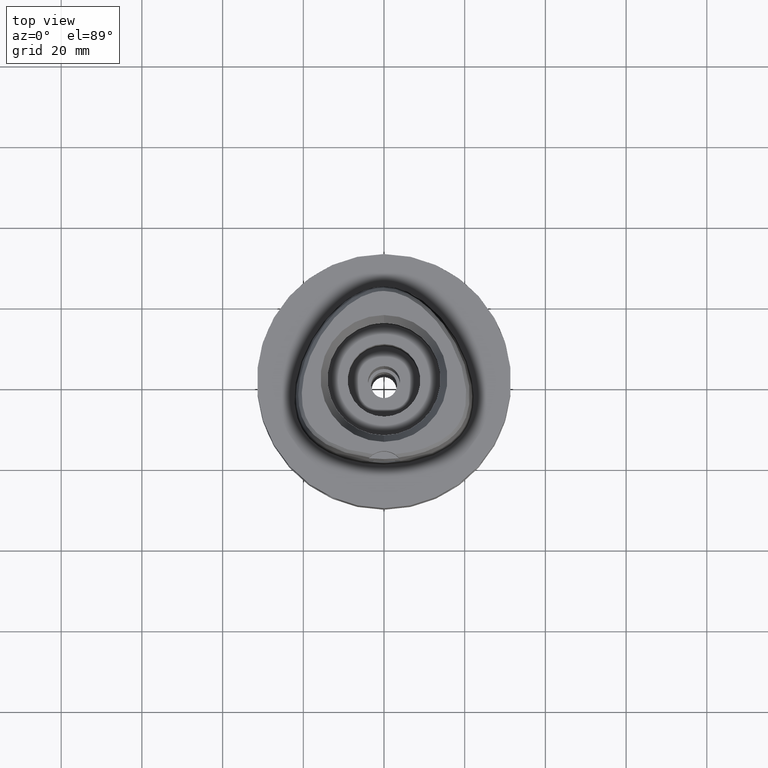
[diagram: clean part render]
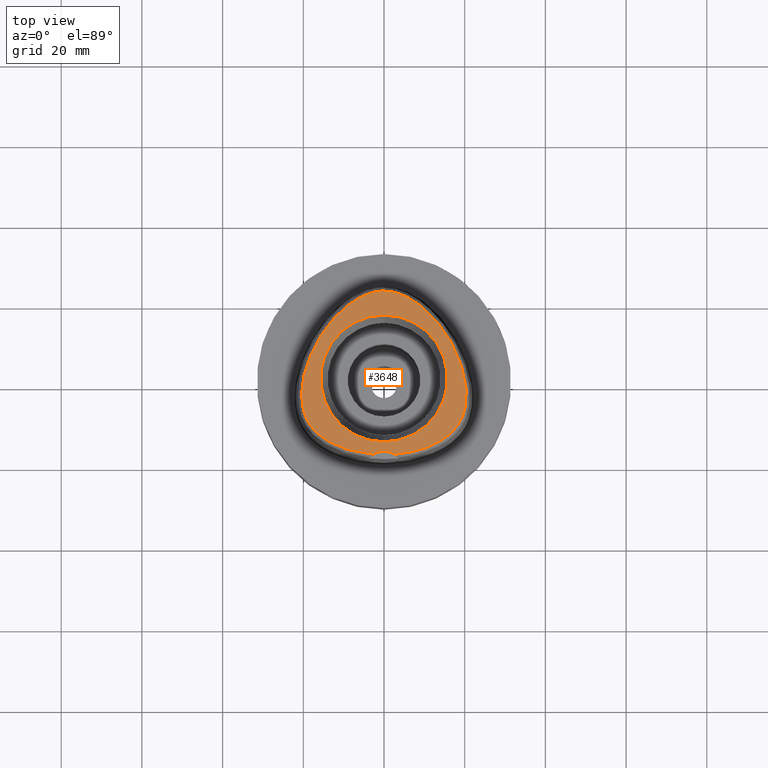
[diagram: same view with one face highlighted and labeled with its STEP entity id]
A machine part, top view. The second image highlights one B-rep face of the part: STEP entity #3648.
In plain terms, the highlighted planar face has unit normal (0, 0, 1).
Its self-contained STEP definition (entity closure, byte-faithful):
#47 = CARTESIAN_POINT ( 'NONE',  ( -19.98419490691658140, -7.809898894995987106, 37.99999999999893419 ) ) ;
#102 = CARTESIAN_POINT ( 'NONE',  ( -19.54919922641915520, -9.228169790567891440, 38.00000000000300560 ) ) ;
#123 = CARTESIAN_POINT ( 'NONE',  ( -12.44116897271302058, 14.89128547409752912, 38.00000000000346034 ) ) ;
#149 = CARTESIAN_POINT ( 'NONE',  ( -10.17136073855662204, -17.24644253469881505, 37.99999999999920419 ) ) ;
#240 = CIRCLE ( 'NONE', #4176, 5.000000000000000888 ) ;
#258 = CARTESIAN_POINT ( 'NONE',  ( 19.64387775268505365, 1.522048414457400245, 37.99999999999445777 ) ) ;
#277 = CARTESIAN_POINT ( 'NONE',  ( 0.0000000000000000000, -15.71487483155999776, 38.00000000000000000 ) ) ;
#307 = CARTESIAN_POINT ( 'NONE',  ( 16.88599964843205825, 8.518708218769862839, 38.00000000000117240 ) ) ;
#333 = CARTESIAN_POINT ( 'NONE',  ( 2.736932690727641670, 21.34527940057000350, 37.99999999999725020 ) ) ;
#355 = CARTESIAN_POINT ( 'NONE',  ( 11.46587147800092232, 15.92717600803098676, 37.99999999999713651 ) ) ;
#358 = CARTESIAN_POINT ( 'NONE',  ( 0.0000000000000000000, 0.0000000000000000000, 38.00000000000000000 ) ) ;
#365 = AXIS2_PLACEMENT_3D ( 'NONE', #3859, #3883, #873 ) ;
#381 = CARTESIAN_POINT ( 'NONE',  ( 18.31883910943385985, -11.58595831188205239, 37.99999999999312195 ) ) ;
#406 = CARTESIAN_POINT ( 'NONE',  ( 8.936919536467147651, -17.64796721714991179, 37.99999999999710809 ) ) ;
#418 = CARTESIAN_POINT ( 'NONE',  ( -7.655222869372381389, 19.09452359226542839, 37.99999999999960210 ) ) ;
#442 = CARTESIAN_POINT ( 'NONE',  ( -16.36032397153683959, -13.76458520345434167, 38.00000000000695621 ) ) ;
#459 = CARTESIAN_POINT ( 'NONE',  ( 10.17751632998298206, -17.24426134458252946, 37.99999999999647571 ) ) ;
#460 = ORIENTED_EDGE ( 'NONE', *, *, #777, .F. ) ;
#472 = CARTESIAN_POINT ( 'NONE',  ( -11.46564124494380366, 15.92741340513270920, 38.00000000000052580 ) ) ;
#484 = CARTESIAN_POINT ( 'NONE',  ( 2.682287482605000051, -18.78036330228999873, 38.00000000000000000 ) ) ;
#544 = DIRECTION ( 'NONE',  ( 0.0000000000000000000, 0.0000000000000000000, 1.000000000000000000 ) ) ;
#595 = CARTESIAN_POINT ( 'NONE',  ( -1.323674540694070645, 21.61098849315821724, 38.00000000000159162 ) ) ;
#659 = CARTESIAN_POINT ( 'NONE',  ( 20.40062138794495183, -4.309334958867448329, 37.99999999999764100 ) ) ;
#681 = CARTESIAN_POINT ( 'NONE',  ( 9.524842839487924095, 17.70516372194865440, 38.00000000000574829 ) ) ;
#706 = CARTESIAN_POINT ( 'NONE',  ( 0.6513209347955770667, 21.67370899611571033, 37.99999999999995026 ) ) ;
#732 = CARTESIAN_POINT ( 'NONE',  ( 7.655962789343341512, 19.09402979099525766, 38.00000000000524381 ) ) ;
#752 = CARTESIAN_POINT ( 'NONE',  ( 7.606839420237979432, -18.00827588386198741, 37.99999999999569411 ) ) ;
#777 = EDGE_CURVE ( 'NONE', #3486, #4056, #240, .T. ) ;
#781 = CARTESIAN_POINT ( 'NONE',  ( 6.196495988003596800, -18.31673538864655271, 38.00000000000195399 ) ) ;
#794 = CARTESIAN_POINT ( 'NONE',  ( -15.24692477332533258, 11.25717358966638493, 38.00000000000024158 ) ) ;
#795 = EDGE_CURVE ( 'NONE', #2599, #3895, #3064, .T. ) ;
#819 = CARTESIAN_POINT ( 'NONE',  ( -20.15090095364636369, -7.024227649787396999, 37.99999999999884182 ) ) ;
#833 = CARTESIAN_POINT ( 'NONE',  ( 17.45306278053647375, -12.68156296993412013, 37.99999999999918288 ) ) ;
#848 = CARTESIAN_POINT ( 'NONE',  ( -3.522896839653986589, -18.70811514173706058, 38.00000000000088107 ) ) ;
#873 = DIRECTION ( 'NONE',  ( 1.000000000000000000, 0.0000000000000000000, 0.0000000000000000000 ) ) ;
#879 = CARTESIAN_POINT ( 'NONE',  ( -16.09805956313724096, 9.908742513516916262, 38.00000000000546407 ) ) ;
#904 = CARTESIAN_POINT ( 'NONE',  ( 0.0000000000000000000, 0.0000000000000000000, 38.00000000000000000 ) ) ;
#906 = CARTESIAN_POINT ( 'NONE',  ( -17.45119705494190754, -12.68365517585671043, 38.00000000000304823 ) ) ;
#1040 = CARTESIAN_POINT ( 'NONE',  ( 18.79595068775678968, 4.257753965103133531, 37.99999999999955236 ) ) ;
#1064 = CARTESIAN_POINT ( 'NONE',  ( 20.36412151361125922, -5.276385427454160393, 38.00000000000110134 ) ) ;
#1142 = CARTESIAN_POINT ( 'NONE',  ( 18.24247239569447032, 5.672548708073054335, 37.99999999999752731 ) ) ;
#1191 = CARTESIAN_POINT ( 'NONE',  ( 15.72078707640256745, -14.29615620308996427, 37.99999999999882760 ) ) ;
#1194 = DIRECTION ( 'NONE',  ( 0.0000000000000000000, 0.0000000000000000000, 1.000000000000000000 ) ) ;
#1233 = CARTESIAN_POINT ( 'NONE',  ( -18.79649882724708476, 4.256255933891022636, 37.99999999999310063 ) ) ;
#1262 = CARTESIAN_POINT ( 'NONE',  ( -17.60426951086655478, 7.098774535281628495, 37.99999999999333511 ) ) ;
#1273 = CARTESIAN_POINT ( 'NONE',  ( 12.37622418509723232, -16.33871033285664609, 37.99999999999838707 ) ) ;
#1312 = CARTESIAN_POINT ( 'NONE',  ( -3.475593359606999682E-11, 21.68728795390000030, 38.00000000000000000 ) ) ;
#1315 = EDGE_CURVE ( 'NONE', #3895, #2599, #3543, .T. ) ;
#1357 = DIRECTION ( 'NONE',  ( 0.0000000000000000000, -1.000000000000000000, 0.0000000000000000000 ) ) ;
#1394 = EDGE_LOOP ( 'NONE', ( #4013, #1625 ) ) ;
#1443 = CARTESIAN_POINT ( 'NONE',  ( 14.34383722811372586, 12.54786717290478926, 37.99999999999550226 ) ) ;
#1492 = CARTESIAN_POINT ( 'NONE',  ( 5.894487344450305422, 20.13186406532421913, 37.99999999999623412 ) ) ;
#1519 = CARTESIAN_POINT ( 'NONE',  ( 6.760281394350983852, 19.65404668909887675, 37.99999999999285194 ) ) ;
#1578 = CARTESIAN_POINT ( 'NONE',  ( -5.058220461389586475, 20.53445508814830234, 37.99999999999654676 ) ) ;
#1625 = ORIENTED_EDGE ( 'NONE', *, *, #1315, .F. ) ;
#1633 = CARTESIAN_POINT ( 'NONE',  ( -2.841965291530688109, -18.76757795571831267, 37.99999999999987210 ) ) ;
#1644 = CARTESIAN_POINT ( 'NONE',  ( 18.99619228226526957, -10.46780014453504037, 37.99999999999318590 ) ) ;
#1651 = FACE_OUTER_BOUND ( 'NONE', #4080, .T. ) ;
#1658 = CARTESIAN_POINT ( 'NONE',  ( -2.682279906006999948, -18.78035848609999903, 38.00000000000000000 ) ) ;
#1688 = CARTESIAN_POINT ( 'NONE',  ( -11.31790883121279023, -16.80796958613593972, 37.99999999999668177 ) ) ;
#1868 = CARTESIAN_POINT ( 'NONE',  ( 3.482188079160158267, 21.13472718027730579, 37.99999999999627676 ) ) ;
#1889 = CARTESIAN_POINT ( 'NONE',  ( 13.40430406168371391, 13.76274261013174893, 38.00000000000000000 ) ) ;
#1911 = CARTESIAN_POINT ( 'NONE',  ( 11.32341394162557968, -16.80569392800742179, 37.99999999999619149 ) ) ;
#1941 = CARTESIAN_POINT ( 'NONE',  ( 2.682287482605000051, -18.78036330228999873, 38.00000000000000000 ) ) ;
#1947 = CARTESIAN_POINT ( 'NONE',  ( -20.30498420086961886, -2.177378896258027829, 38.00000000000496669 ) ) ;
#1973 = CARTESIAN_POINT ( 'NONE',  ( -19.26324493738452048, 2.868570891456977190, 38.00000000000227374 ) ) ;
#2003 = CARTESIAN_POINT ( 'NONE',  ( 0.0000000000000000000, -23.00000000000000000, 38.00000000000000000 ) ) ;
#2005 = CARTESIAN_POINT ( 'NONE',  ( -4.254559144977612561, 20.86660163697036552, 38.00000000000117240 ) ) ;
#2018 = CARTESIAN_POINT ( 'NONE',  ( 17.91165267839386743, -12.13575389397641224, 38.00000000000039790 ) ) ;
#2033 = CARTESIAN_POINT ( 'NONE',  ( -19.78262210840563284, -8.543146992552985708, 38.00000000000400036 ) ) ;
#2129 = CARTESIAN_POINT ( 'NONE',  ( -2.017025177696486260, 21.50280829367815372, 37.99999999999343459 ) ) ;
#2223 = CARTESIAN_POINT ( 'NONE',  ( 1.325020189552360783, 21.61081414409078860, 37.99999999999699440 ) ) ;
#2247 = CARTESIAN_POINT ( 'NONE',  ( 2.018320379028335942, 21.50256508436627456, 38.00000000000211031 ) ) ;
#2271 = B_SPLINE_CURVE_WITH_KNOTS ( 'NONE', 3,
 ( #4876, #2989, #706, #2223, #2247, #333, #1868, #4923, #3409, #1492, #1519, #732, #3037, #681, #4563, #355, #4950, #1889, #1443, #3063, #4489, #307, #4586, #1142, #1040, #3709, #258, #3336, #4513, #2962, #2584, #659, #1064, #2781, #3929, #3107, #2298, #4657, #3510, #1644, #4709, #381, #2018, #833, #2378, #2730, #1191, #4208, #4630, #2408, #1273, #1911, #459, #406, #752, #781, #3167, #3140, #2353, #484 ),
 .UNSPECIFIED., .F., .F.,
 ( 4, 1, 1, 1, 1, 1, 1, 1, 1, 1, 1, 1, 1, 1, 1, 1, 1, 1, 1, 1, 1, 1, 1, 1, 1, 1, 1, 1, 1, 1, 1, 1, 1, 1, 1, 1, 1, 1, 1, 1, 1, 1, 1, 1, 1, 1, 1, 1, 1, 1, 1, 1, 1, 1, 1, 1, 1, 4 ),
 ( 0.0000000000000000000, 0.01775854187129999318, 0.03551708374169992855, 0.05327562561200005486, 0.07103416748239999023, 0.08879270935270000553, 0.1065512512231000519, 0.1243097930933999562, 0.1420683349638000026, 0.1598268768341000179, 0.1775854187044000332, 0.1953439605747999686, 0.2131025024450999839, 0.2308610443155000302, 0.2486195861857999345, 0.2663781280563000120, 0.2841366699266000273, 0.3018952117970000737, 0.3196537536672999780, 0.3374122955377000244, 0.3551708374080000397, 0.3729293792782999439, 0.3906879211486999903, 0.4084464630190000056, 0.4262050048894000520, 0.4439635467596999563, 0.4617220886301000027, 0.4794806305004000180, 0.4972391723707999533, 0.5149977142410999686, 0.5327562561113999839, 0.5505147979818000303, 0.5682733398521000456, 0.5860318817224999810, 0.6037904235927999963, 0.6215489654632000427, 0.6393075073334999470, 0.6570660492038999934, 0.6748245910742000087, 0.6925831329445000240, 0.7103416748149000703, 0.7281002166851999746, 0.7458587585556000210, 0.7636173004259000363, 0.7813758422962999717, 0.7991343841665999870, 0.8168929260370000334, 0.8346514679073000487, 0.8524100097776999840, 0.8701685516479999993, 0.8879270935183000146, 0.9056856353886799660, 0.9234441772589799813, 0.9412027191293600437, 0.9589612609997000270, 0.9767198028700500023, 0.9944783447403919840, 1.000000000000000000 ),
 .UNSPECIFIED. ) ;
#2298 = CARTESIAN_POINT ( 'NONE',  ( 19.78323211892922018, -8.541156231036387325, 37.99999999999491962 ) ) ;
#2341 = CARTESIAN_POINT ( 'NONE',  ( -6.759433772717937217, 19.65454812512675531, 37.99999999999653255 ) ) ;
#2353 = CARTESIAN_POINT ( 'NONE',  ( 2.845098933833491550, -18.76733062685876163, 38.00000000000136424 ) ) ;
#2355 = ORIENTED_EDGE ( 'NONE', *, *, #4505, .F. ) ;
#2360 = PLANE ( 'NONE',  #365 ) ;
#2366 = CARTESIAN_POINT ( 'NONE',  ( -14.21001600787627339, -15.34519100086062515, 37.99999999999609912 ) ) ;
#2378 = CARTESIAN_POINT ( 'NONE',  ( 16.93855157777607801, -13.22377441789276808, 37.99999999999567990 ) ) ;
#2393 = CARTESIAN_POINT ( 'NONE',  ( -12.37132652997273041, -16.34104299088073731, 37.99999999999595701 ) ) ;
#2408 = CARTESIAN_POINT ( 'NONE',  ( 13.33890749495752992, -15.84912955619471120, 37.99999999999661782 ) ) ;
#2423 = CARTESIAN_POINT ( 'NONE',  ( -15.00295592774214803, -14.82617991125727563, 38.00000000000061817 ) ) ;
#2541 = CARTESIAN_POINT ( 'NONE',  ( -2.735698246183100313, 21.34559102902258232, 38.00000000000549960 ) ) ;
#2584 = CARTESIAN_POINT ( 'NONE',  ( 20.38292172607570762, -3.276278498261651073, 37.99999999999240430 ) ) ;
#2599 = VERTEX_POINT ( 'NONE', #277 ) ;
#2717 = CARTESIAN_POINT ( 'NONE',  ( -20.27898581532152278, -6.181921586189995210, 38.00000000000031974 ) ) ;
#2730 = CARTESIAN_POINT ( 'NONE',  ( 16.36283630828291180, -13.76236604535011665, 37.99999999999974420 ) ) ;
#2742 = CARTESIAN_POINT ( 'NONE',  ( -18.99520880204379836, -10.46968343926177347, 37.99999999999787548 ) ) ;
#2770 = CARTESIAN_POINT ( 'NONE',  ( -10.48962422759627700, 16.86631853279250137, 38.00000000000261480 ) ) ;
#2781 = CARTESIAN_POINT ( 'NONE',  ( 20.27923816685682823, -6.179850483268392480, 38.00000000000574829 ) ) ;
#2797 = CARTESIAN_POINT ( 'NONE',  ( -16.88647904405384637, 8.517821442303024071, 38.00000000000365930 ) ) ;
#2822 = DIRECTION ( 'NONE',  ( 0.0000000000000000000, 1.000000000000000000, 0.0000000000000000000 ) ) ;
#2824 = CARTESIAN_POINT ( 'NONE',  ( -18.67608643721335682, -11.03561202291209575, 38.00000000000033396 ) ) ;
#2851 = CARTESIAN_POINT ( 'NONE',  ( -0.6498990081535668262, 21.67378274708581287, 37.99999999999869260 ) ) ;
#2941 = CARTESIAN_POINT ( 'NONE',  ( -3.481017203589050979, 21.13509756881755308, 37.99999999999544542 ) ) ;
#2962 = CARTESIAN_POINT ( 'NONE',  ( 20.30478359881657724, -2.175347700950294616, 37.99999999999626965 ) ) ;
#2989 = CARTESIAN_POINT ( 'NONE',  ( 0.2185816947241160380, 21.68728795389702313, 37.99999999999960210 ) ) ;
#3010 = CARTESIAN_POINT ( 'NONE',  ( -3.475593359606999682E-11, 21.68728795390000030, 38.00000000000000000 ) ) ;
#3037 = CARTESIAN_POINT ( 'NONE',  ( 8.578848111817105604, 18.44609846599001557, 38.00000000000054001 ) ) ;
#3063 = CARTESIAN_POINT ( 'NONE',  ( 15.24661770199096900, 11.25762885477951158, 37.99999999999543121 ) ) ;
#3064 = CIRCLE ( 'NONE', #3695, 15.71487483155999776 ) ;
#3107 = CARTESIAN_POINT ( 'NONE',  ( 19.98468477322734671, -7.807876343103171912, 37.99999999999853628 ) ) ;
#3125 = CARTESIAN_POINT ( 'NONE',  ( -20.40060226222547257, -4.311417605381054230, 38.00000000000147793 ) ) ;
#3140 = CARTESIAN_POINT ( 'NONE',  ( 3.529311563348520142, -18.70747079910108113, 38.00000000000201084 ) ) ;
#3155 = CARTESIAN_POINT ( 'NONE',  ( -9.524337278001938856, 17.70558492630402725, 37.99999999999589306 ) ) ;
#3167 = CARTESIAN_POINT ( 'NONE',  ( 4.715576077241585118, -18.56597918135685177, 37.99999999999288036 ) ) ;
#3181 = CARTESIAN_POINT ( 'NONE',  ( -17.91005512243991049, -12.13778127739320389, 38.00000000000270006 ) ) ;
#3209 = CARTESIAN_POINT ( 'NONE',  ( -16.93638123745602897, -13.22593246128444555, 37.99999999999513278 ) ) ;
#3231 = CARTESIAN_POINT ( 'NONE',  ( -7.599370508970504368, -18.01010694911206400, 38.00000000000024158 ) ) ;
#3336 = CARTESIAN_POINT ( 'NONE',  ( 19.94150023627565815, 0.2261566111944612600, 37.99999999999995737 ) ) ;
#3409 = CARTESIAN_POINT ( 'NONE',  ( 5.059249257020680623, 20.53399274678796260, 37.99999999999720046 ) ) ;
#3486 = VERTEX_POINT ( 'NONE', #1941 ) ;
#3495 = CARTESIAN_POINT ( 'NONE',  ( -13.33457781970033551, -15.85148397417170152, 38.00000000000068212 ) ) ;
#3510 = CARTESIAN_POINT ( 'NONE',  ( 19.28677546796815534, -9.867757137505513754, 38.00000000000162714 ) ) ;
#3525 = CARTESIAN_POINT ( 'NONE',  ( -18.24302769441047545, 5.671232572958810003, 37.99999999999752731 ) ) ;
#3543 = CIRCLE ( 'NONE', #3846, 15.71487483155999776 ) ;
#3550 = CARTESIAN_POINT ( 'NONE',  ( -8.930096025510360747, -17.65000298921415478, 37.99999999999897682 ) ) ;
#3572 = CARTESIAN_POINT ( 'NONE',  ( -20.16012968311655840, -1.009698174524545466, 38.00000000000171951 ) ) ;
#3599 = CARTESIAN_POINT ( 'NONE',  ( -6.188376196366293769, -18.31830638231481245, 37.99999999999499778 ) ) ;
#3648 = ADVANCED_FACE ( 'NONE', ( #1651, #4319 ), #2360, .T. ) ;
#3665 = CARTESIAN_POINT ( 'NONE',  ( -0.2181979014509072279, 21.68728795389177222, 37.99999999999901945 ) ) ;
#3695 = AXIS2_PLACEMENT_3D ( 'NONE', #904, #3965, #1357 ) ;
#3709 = CARTESIAN_POINT ( 'NONE',  ( 19.26272899268204952, 2.870227893749443648, 37.99999999999506173 ) ) ;
#3751 = CARTESIAN_POINT ( 'NONE',  ( -2.682279906006999948, -18.78035848609999903, 38.00000000000000000 ) ) ;
#3846 = AXIS2_PLACEMENT_3D ( 'NONE', #358, #1194, #4925 ) ;
#3859 = CARTESIAN_POINT ( 'NONE',  ( 0.0000000000000000000, 0.0000000000000000000, 38.00000000000000000 ) ) ;
#3867 = CARTESIAN_POINT ( 'NONE',  ( -19.64434054693262865, 1.520253387635620346, 37.99999999999277378 ) ) ;
#3883 = DIRECTION ( 'NONE',  ( 0.0000000000000000000, 0.0000000000000000000, 1.000000000000000000 ) ) ;
#3888 = CARTESIAN_POINT ( 'NONE',  ( -15.71788912668889004, -14.29843101566080676, 37.99999999999270983 ) ) ;
#3895 = VERTEX_POINT ( 'NONE', #4809 ) ;
#3917 = CARTESIAN_POINT ( 'NONE',  ( -19.94188961899395807, 0.2242544969876888727, 37.99999999999960920 ) ) ;
#3929 = CARTESIAN_POINT ( 'NONE',  ( 20.15127154947414567, -7.022178451341448024, 37.99999999999935341 ) ) ;
#3965 = DIRECTION ( 'NONE',  ( 0.0000000000000000000, 0.0000000000000000000, 1.000000000000000000 ) ) ;
#3969 = CARTESIAN_POINT ( 'NONE',  ( -4.706994425064723764, -18.56721852572553644, 38.00000000000257216 ) ) ;
#4013 = ORIENTED_EDGE ( 'NONE', *, *, #795, .F. ) ;
#4056 = VERTEX_POINT ( 'NONE', #3751 ) ;
#4080 = EDGE_LOOP ( 'NONE', ( #4313, #2355, #460 ) ) ;
#4155 = VERTEX_POINT ( 'NONE', #3010 ) ;
#4176 = AXIS2_PLACEMENT_3D ( 'NONE', #2003, #544, #2822 ) ;
#4208 = CARTESIAN_POINT ( 'NONE',  ( 15.00628712263580766, -14.82385870794523264, 37.99999999999243272 ) ) ;
#4248 = CARTESIAN_POINT ( 'NONE',  ( -20.36398648679636381, -5.278470727085075254, 37.99999999999810996 ) ) ;
#4273 = CARTESIAN_POINT ( 'NONE',  ( -20.38301517462900136, -3.278344853327835651, 38.00000000000610356 ) ) ;
#4296 = CARTESIAN_POINT ( 'NONE',  ( -5.893543501601096857, 20.13235399352151234, 38.00000000000478195 ) ) ;
#4313 = ORIENTED_EDGE ( 'NONE', *, *, #4831, .F. ) ;
#4319 = FACE_BOUND ( 'NONE', #1394, .T. ) ;
#4327 = CARTESIAN_POINT ( 'NONE',  ( -13.40435640711459797, 13.76268382997414541, 37.99999999999985789 ) ) ;
#4489 = CARTESIAN_POINT ( 'NONE',  ( 16.09765529146507745, 9.909410920133495893, 37.99999999999398170 ) ) ;
#4505 = EDGE_CURVE ( 'NONE', #4056, #4155, #4550, .T. ) ;
#4513 = CARTESIAN_POINT ( 'NONE',  ( 20.15982952132481287, -1.007721426051725544, 38.00000000000486722 ) ) ;
#4550 = B_SPLINE_CURVE_WITH_KNOTS ( 'NONE', 3,
 ( #1658, #1633, #848, #3969, #3599, #3231, #3550, #149, #1688, #2393, #3495, #2366, #2423, #3888, #442, #3209, #906, #3181, #4750, #2824, #2742, #4643, #102, #2033, #47, #819, #2717, #4248, #3125, #4273, #1947, #3572, #3917, #3867, #1973, #1233, #3525, #1262, #2797, #879, #794, #4727, #4327, #123, #472, #2770, #3155, #4670, #418, #2341, #4296, #1578, #2005, #2941, #2541, #2129, #595, #2851, #3665, #1312 ),
 .UNSPECIFIED., .F., .F.,
 ( 4, 1, 1, 1, 1, 1, 1, 1, 1, 1, 1, 1, 1, 1, 1, 1, 1, 1, 1, 1, 1, 1, 1, 1, 1, 1, 1, 1, 1, 1, 1, 1, 1, 1, 1, 1, 1, 1, 1, 1, 1, 1, 1, 1, 1, 1, 1, 1, 1, 1, 1, 1, 1, 1, 1, 1, 1, 4 ),
 ( 0.0000000000000000000, 0.005420919554200098744, 0.02318126027639999531, 0.04094160099879995407, 0.05870194172099996166, 0.07646228244330000035, 0.09422262316550000794, 0.1119829638877999356, 0.1297433046099999432, 0.1475036453321999508, 0.1652639860544999895, 0.1830243267768000281, 0.2007846674991000668, 0.2185450082212999634, 0.2363053489436000021, 0.2540656896658000097, 0.2718260303881000484, 0.2895863711103000560, 0.3073467118325999836, 0.3251070525547999912, 0.3428673932771000299, 0.3606277339994000686, 0.3783880747216000762, 0.3961484154438998928, 0.4139087561661000114, 0.4316690968884000501, 0.4494294376106000577, 0.4671897783328999854, 0.4849501190552000240, 0.5027104597774000316, 0.5204708004996999593, 0.5382311412219000779, 0.5559914819442000056, 0.5737518226664000132, 0.5915121633886999408, 0.6092725041108999484, 0.6270328448331999871, 0.6447931855555000258, 0.6625535262777000334, 0.6803138669999999610, 0.6980742077221999686, 0.7158345484445000073, 0.7335948891667000149, 0.7513552298890000536, 0.7691155706112000612, 0.7868759113336000199, 0.8046362520558000275, 0.8223965927780999552, 0.8401569335002999628, 0.8579172742224999704, 0.8756776149448000091, 0.8934379556670000166, 0.9111982963893099363, 0.9289586371115600150, 0.9467189778338299666, 0.9644793185560800453, 0.9822396592783400049, 1.000000000000000000 ),
 .UNSPECIFIED. ) ;
#4563 = CARTESIAN_POINT ( 'NONE',  ( 10.48999540690792465, 16.86597469869751365, 38.00000000000277112 ) ) ;
#4586 = CARTESIAN_POINT ( 'NONE',  ( 17.60373714027976533, 7.099883643192799632, 37.99999999999628386 ) ) ;
#4630 = CARTESIAN_POINT ( 'NONE',  ( 14.21382211799319784, -15.34284287400347147, 37.99999999999754152 ) ) ;
#4643 = CARTESIAN_POINT ( 'NONE',  ( -19.28591707036773784, -9.869682450886939407, 37.99999999999823785 ) ) ;
#4657 = CARTESIAN_POINT ( 'NONE',  ( 19.54993126781511847, -9.226212439886166905, 38.00000000000027001 ) ) ;
#4670 = CARTESIAN_POINT ( 'NONE',  ( -8.578220530113664921, 18.44656747109426576, 37.99999999999955236 ) ) ;
#4709 = CARTESIAN_POINT ( 'NONE',  ( 18.67722910598110175, -11.03372143228286362, 38.00000000000010658 ) ) ;
#4727 = CARTESIAN_POINT ( 'NONE',  ( -14.34402387965681491, 12.54761970512672953, 37.99999999999663203 ) ) ;
#4750 = CARTESIAN_POINT ( 'NONE',  ( -18.31748213707268746, -11.58791794388078067, 37.99999999999749889 ) ) ;
#4809 = CARTESIAN_POINT ( 'NONE',  ( 0.0000000000000000000, 15.71487483155999776, 38.00000000000000000 ) ) ;
#4831 = EDGE_CURVE ( 'NONE', #4155, #3486, #2271, .T. ) ;
#4876 = CARTESIAN_POINT ( 'NONE',  ( -3.475593359606999682E-11, 21.68728795390000030, 38.00000000000000000 ) ) ;
#4923 = CARTESIAN_POINT ( 'NONE',  ( 4.255661039971942117, 20.86618068830016881, 37.99999999999877787 ) ) ;
#4925 = DIRECTION ( 'NONE',  ( 0.0000000000000000000, 1.000000000000000000, 0.0000000000000000000 ) ) ;
#4950 = CARTESIAN_POINT ( 'NONE',  ( 12.44125753246705735, 14.89118158853682417, 37.99999999999565148 ) ) ;